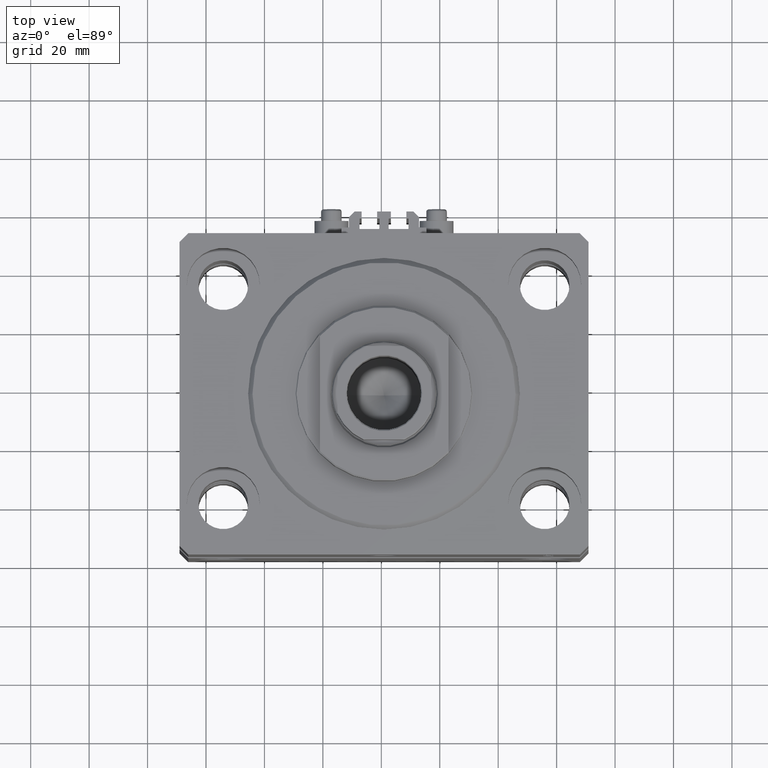
[diagram: clean part render]
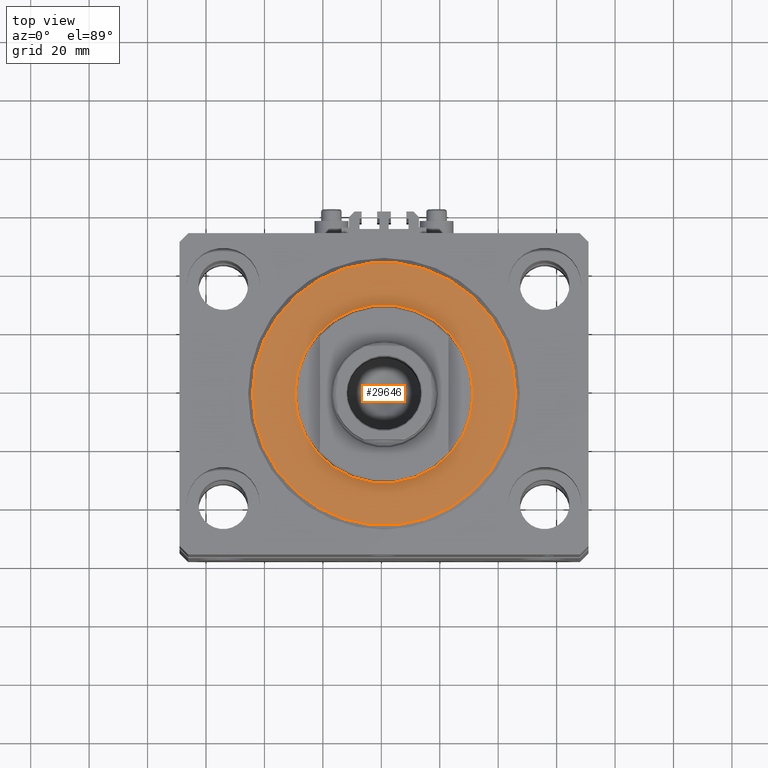
[diagram: same view with one face highlighted and labeled with its STEP entity id]
A machine part, top view. The second image highlights one B-rep face of the part: STEP entity #29646.
In plain terms, the highlighted planar face has unit normal (0, 0, -1).
Its self-contained STEP definition (entity closure, byte-faithful):
#200 = VERTEX_POINT ( 'NONE', #18956 ) ;
#381 = PLANE ( 'NONE',  #36111 ) ;
#4037 = CARTESIAN_POINT ( 'NONE',  ( 0.000000000000000000, 0.000000000000000000, 0.000000000000000000 ) ) ;
#4605 = FACE_BOUND ( 'NONE', #47015, .T. ) ;
#5109 = VERTEX_POINT ( 'NONE', #31942 ) ;
#7779 = AXIS2_PLACEMENT_3D ( 'NONE', #46495, #7878, #41521 ) ;
#7878 = DIRECTION ( 'NONE',  ( -0.000000000000000000, -0.000000000000000000, -1.000000000000000000 ) ) ;
#9006 = EDGE_LOOP ( 'NONE', ( #31635, #27798 ) ) ;
#9082 = CARTESIAN_POINT ( 'NONE',  ( 0.000000000000000000, 0.000000000000000000, 0.000000000000000000 ) ) ;
#9458 = AXIS2_PLACEMENT_3D ( 'NONE', #35894, #47867, #12727 ) ;
#12293 = EDGE_CURVE ( 'NONE', #200, #15077, #16686, .T. ) ;
#12727 = DIRECTION ( 'NONE',  ( 1.000000000000000000, 0.000000000000000000, 0.000000000000000000 ) ) ;
#15021 = CIRCLE ( 'NONE', #38923, 30.50000000000000000 ) ;
#15077 = VERTEX_POINT ( 'NONE', #36646 ) ;
#15172 = VERTEX_POINT ( 'NONE', #19185 ) ;
#16686 = CIRCLE ( 'NONE', #40586, 45.00000000000000000 ) ;
#17500 = DIRECTION ( 'NONE',  ( 1.000000000000000000, 0.000000000000000000, 0.000000000000000000 ) ) ;
#18956 = CARTESIAN_POINT ( 'NONE',  ( -45.00000000000000000, 5.602759106099140917E-15, 0.000000000000000000 ) ) ;
#19185 = CARTESIAN_POINT ( 'NONE',  ( 30.50000000000000000, 0.000000000000000000, 2.168404344971008868E-16 ) ) ;
#19241 = DIRECTION ( 'NONE',  ( -0.000000000000000000, -0.000000000000000000, -1.000000000000000000 ) ) ;
#19721 = CIRCLE ( 'NONE', #7779, 45.00000000000000000 ) ;
#20750 = DIRECTION ( 'NONE',  ( 0.000000000000000000, 0.000000000000000000, 1.000000000000000000 ) ) ;
#21362 = CIRCLE ( 'NONE', #9458, 30.50000000000000000 ) ;
#27798 = ORIENTED_EDGE ( 'NONE', *, *, #12293, .T. ) ;
#29646 = ADVANCED_FACE ( 'NONE', ( #4605, #46001 ), #381, .F. ) ;
#31298 = ORIENTED_EDGE ( 'NONE', *, *, #44402, .T. ) ;
#31635 = ORIENTED_EDGE ( 'NONE', *, *, #40568, .T. ) ;
#31942 = CARTESIAN_POINT ( 'NONE',  ( -30.50000000000000000, 3.735172737399427541E-15, 2.168404344971008868E-16 ) ) ;
#31966 = CARTESIAN_POINT ( 'NONE',  ( 0.000000000000000000, 0.000000000000000000, 0.000000000000000000 ) ) ;
#34438 = DIRECTION ( 'NONE',  ( 1.000000000000000000, 0.000000000000000000, 0.000000000000000000 ) ) ;
#35012 = DIRECTION ( 'NONE',  ( 1.000000000000000000, 0.000000000000000000, -0.000000000000000000 ) ) ;
#35894 = CARTESIAN_POINT ( 'NONE',  ( 0.000000000000000000, 0.000000000000000000, 0.000000000000000000 ) ) ;
#36111 = AXIS2_PLACEMENT_3D ( 'NONE', #9082, #46248, #35012 ) ;
#36646 = CARTESIAN_POINT ( 'NONE',  ( 45.00000000000000000, 0.000000000000000000, 0.000000000000000000 ) ) ;
#38923 = AXIS2_PLACEMENT_3D ( 'NONE', #31966, #20750, #17500 ) ;
#40568 = EDGE_CURVE ( 'NONE', #15077, #200, #19721, .T. ) ;
#40586 = AXIS2_PLACEMENT_3D ( 'NONE', #4037, #19241, #34438 ) ;
#41521 = DIRECTION ( 'NONE',  ( 1.000000000000000000, 0.000000000000000000, 0.000000000000000000 ) ) ;
#42909 = ORIENTED_EDGE ( 'NONE', *, *, #43907, .T. ) ;
#43907 = EDGE_CURVE ( 'NONE', #15172, #5109, #21362, .T. ) ;
#44402 = EDGE_CURVE ( 'NONE', #5109, #15172, #15021, .T. ) ;
#46001 = FACE_OUTER_BOUND ( 'NONE', #9006, .T. ) ;
#46248 = DIRECTION ( 'NONE',  ( 0.000000000000000000, 0.000000000000000000, 1.000000000000000000 ) ) ;
#46495 = CARTESIAN_POINT ( 'NONE',  ( 0.000000000000000000, 0.000000000000000000, 0.000000000000000000 ) ) ;
#47015 = EDGE_LOOP ( 'NONE', ( #42909, #31298 ) ) ;
#47867 = DIRECTION ( 'NONE',  ( 0.000000000000000000, 0.000000000000000000, 1.000000000000000000 ) ) ;